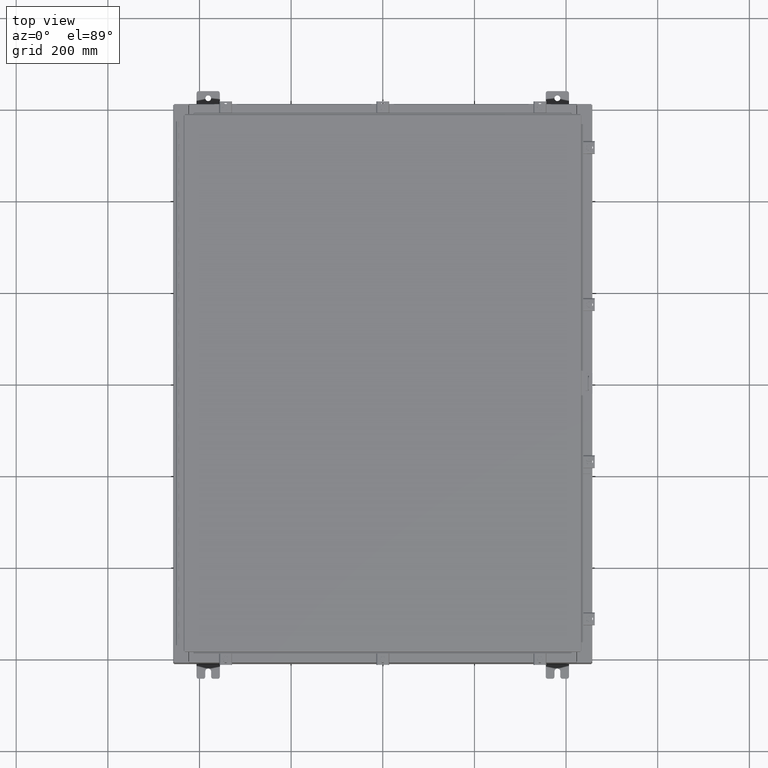
[diagram: clean part render]
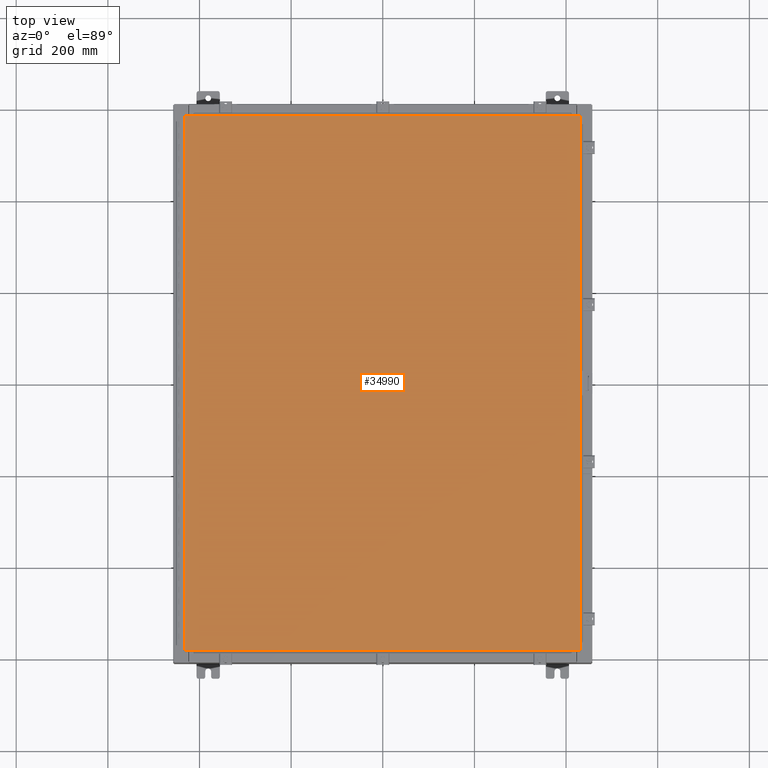
[diagram: same view with one face highlighted and labeled with its STEP entity id]
A machine part, top view. The second image highlights one B-rep face of the part: STEP entity #34990.
In plain terms, the highlighted planar face has unit normal (0, 0, -1).
Its self-contained STEP definition (entity closure, byte-faithful):
#320 = ORIENTED_EDGE ( 'NONE', *, *, #3128, .T. ) ;
#379 = LINE ( 'NONE', #24669, #10371 ) ;
#3128 = EDGE_CURVE ( 'NONE', #51722, #24947, #379, .T. ) ;
#4560 = DIRECTION ( 'NONE',  ( 1.000000000000000000, -0.0000000000000000000, -0.0000000000000000000 ) ) ;
#6908 = LINE ( 'NONE', #51452, #20962 ) ;
#10371 = VECTOR ( 'NONE', #11969, 39.37007874015748100 ) ;
#11969 = DIRECTION ( 'NONE',  ( -1.000000000000000000, -0.0000000000000000000, -0.0000000000000000000 ) ) ;
#12821 = LINE ( 'NONE', #18153, #22839 ) ;
#13094 = CARTESIAN_POINT ( 'NONE',  ( 16.99029999999999800, 23.00630000000001000, 2.185478394931410600E-015 ) ) ;
#14532 = ORIENTED_EDGE ( 'NONE', *, *, #49658, .T. ) ;
#15349 = VERTEX_POINT ( 'NONE', #23481 ) ;
#16177 = CARTESIAN_POINT ( 'NONE',  ( 16.99029999999999800, -23.00630000000000300, 0.0000000000000000000 ) ) ;
#17910 = EDGE_CURVE ( 'NONE', #35808, #51722, #12821, .T. ) ;
#18153 = CARTESIAN_POINT ( 'NONE',  ( 16.99029999999999800, -23.00630000000000300, 0.0000000000000000000 ) ) ;
#19916 = LINE ( 'NONE', #30108, #49966 ) ;
#20159 = ORIENTED_EDGE ( 'NONE', *, *, #20576, .T. ) ;
#20576 = EDGE_CURVE ( 'NONE', #15349, #35808, #19916, .T. ) ;
#20962 = VECTOR ( 'NONE', #38528, 39.37007874015748100 ) ;
#22635 = DIRECTION ( 'NONE',  ( 0.0000000000000000000, 0.0000000000000000000, -1.000000000000000000 ) ) ;
#22839 = VECTOR ( 'NONE', #27327, 39.37007874015748100 ) ;
#23481 = CARTESIAN_POINT ( 'NONE',  ( -16.99029999999999800, -23.00630000000000300, 2.185478394931410600E-015 ) ) ;
#24669 = CARTESIAN_POINT ( 'NONE',  ( 16.99029999999999800, 23.00630000000001000, 2.185478394931410600E-015 ) ) ;
#24947 = VERTEX_POINT ( 'NONE', #45309 ) ;
#25751 = FACE_OUTER_BOUND ( 'NONE', #40945, .T. ) ;
#27327 = DIRECTION ( 'NONE',  ( 0.0000000000000000000, 1.000000000000000000, 0.0000000000000000000 ) ) ;
#30108 = CARTESIAN_POINT ( 'NONE',  ( -16.99029999999999800, -23.00630000000000300, 2.185478394931410600E-015 ) ) ;
#34990 = ADVANCED_FACE ( 'NONE', ( #25751 ), #43869, .F. ) ;
#35808 = VERTEX_POINT ( 'NONE', #16177 ) ;
#37873 = ORIENTED_EDGE ( 'NONE', *, *, #17910, .T. ) ;
#38528 = DIRECTION ( 'NONE',  ( 0.0000000000000000000, -1.000000000000000000, 0.0000000000000000000 ) ) ;
#39581 = CARTESIAN_POINT ( 'NONE',  ( 0.0000000000000000000, 0.0000000000000000000, 0.0000000000000000000 ) ) ;
#40945 = EDGE_LOOP ( 'NONE', ( #20159, #37873, #320, #14532 ) ) ;
#43869 = PLANE ( 'NONE',  #52392 ) ;
#45309 = CARTESIAN_POINT ( 'NONE',  ( -16.99029999999998400, 23.00630000000001000, -1.092739197465705300E-015 ) ) ;
#49658 = EDGE_CURVE ( 'NONE', #24947, #15349, #6908, .T. ) ;
#49966 = VECTOR ( 'NONE', #4560, 39.37007874015748100 ) ;
#51452 = CARTESIAN_POINT ( 'NONE',  ( -16.99029999999998400, 23.00630000000001000, -1.092739197465705300E-015 ) ) ;
#51722 = VERTEX_POINT ( 'NONE', #13094 ) ;
#52392 = AXIS2_PLACEMENT_3D ( 'NONE', #39581, #22635, #52534 ) ;
#52534 = DIRECTION ( 'NONE',  ( -1.000000000000000000, 0.0000000000000000000, -0.0000000000000000000 ) ) ;